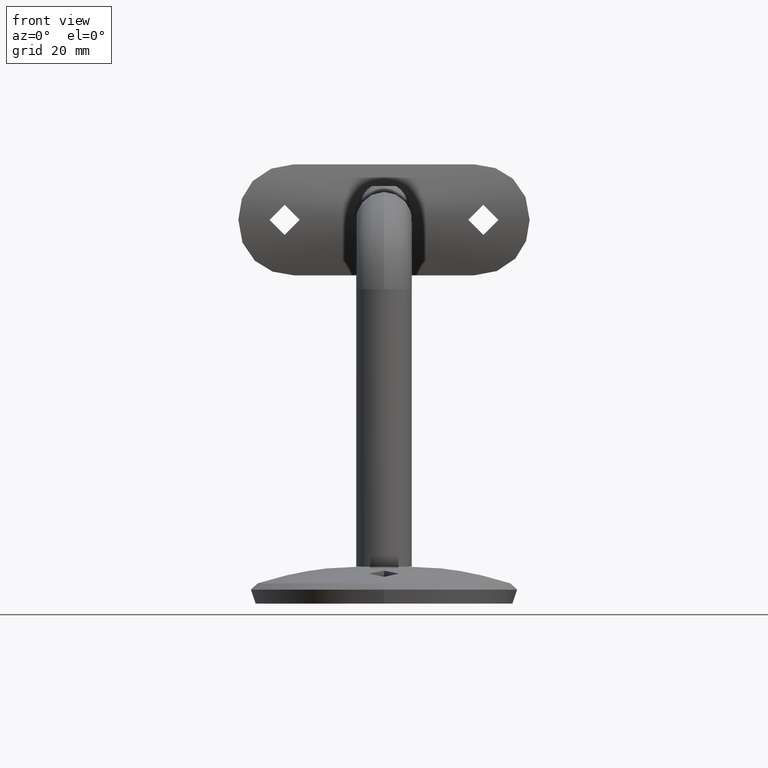
[diagram: clean part render]
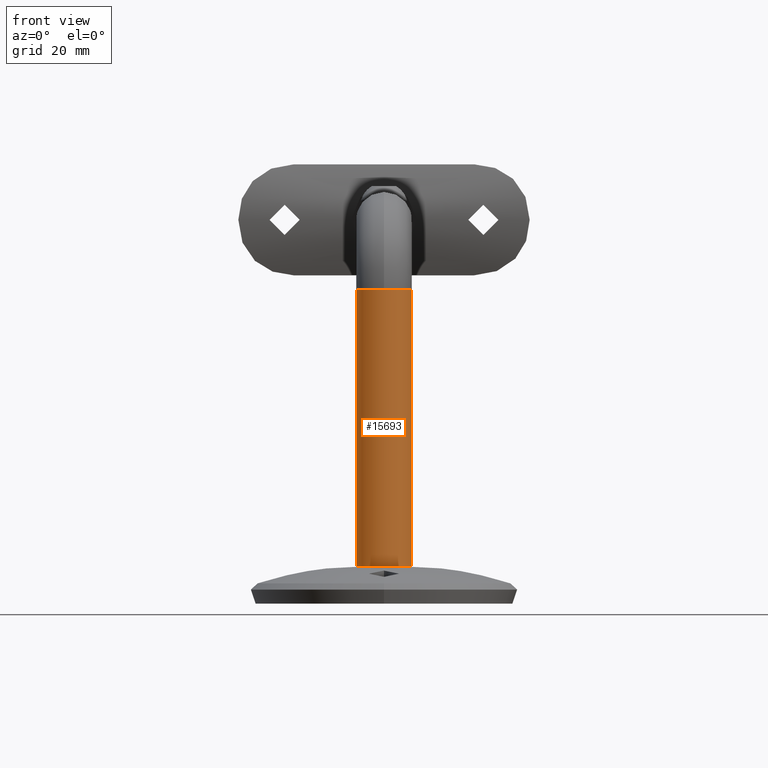
[diagram: same view with one face highlighted and labeled with its STEP entity id]
A machine part, front view. The second image highlights one B-rep face of the part: STEP entity #15693.
In plain terms, the highlighted cylindrical surface (edge-blend (fillet) strip) has radius 6 mm, axis along (0, 0, -1).
Its self-contained STEP definition (entity closure, byte-faithful):
#399 = CARTESIAN_POINT ( 'NONE',  ( 0.000000000000000000, 0.000000000000000000, 0.000000000000000000 ) ) ;
#507 = ORIENTED_EDGE ( 'NONE', *, *, #2418, .T. ) ;
#715 = ORIENTED_EDGE ( 'NONE', *, *, #5719, .T. ) ;
#722 = VECTOR ( 'NONE', #12103, 1000.000000000000000 ) ;
#1881 = DIRECTION ( 'NONE',  ( 1.000000000000000000, 0.000000000000000000, 0.000000000000000000 ) ) ;
#1962 = CIRCLE ( 'NONE', #18206, 6.000000000000000888 ) ;
#2080 = EDGE_LOOP ( 'NONE', ( #10238, #715, #507, #6909, #12499 ) ) ;
#2418 = EDGE_CURVE ( 'NONE', #14566, #14734, #1962, .T. ) ;
#2518 = CARTESIAN_POINT ( 'NONE',  ( 0.000000000000000000, 0.000000000000000000, -59.99999999999949551 ) ) ;
#2561 = CARTESIAN_POINT ( 'NONE',  ( 0.000000000000000000, 0.000000000000000000, -59.99999999999949551 ) ) ;
#2629 = CARTESIAN_POINT ( 'NONE',  ( 6.000000000000000888, 0.000000000000000000, 0.000000000000000000 ) ) ;
#2726 = DIRECTION ( 'NONE',  ( 0.000000000000000000, 0.000000000000000000, 1.000000000000000000 ) ) ;
#3420 = AXIS2_PLACEMENT_3D ( 'NONE', #2561, #6845, #18579 ) ;
#3424 = CARTESIAN_POINT ( 'NONE',  ( 6.000000000000000888, 0.000000000000000000, -59.99999999999949551 ) ) ;
#3556 = VERTEX_POINT ( 'NONE', #2629 ) ;
#3570 = CARTESIAN_POINT ( 'NONE',  ( 0.000000000000000000, 0.000000000000000000, -59.99999999999949551 ) ) ;
#3662 = FACE_OUTER_BOUND ( 'NONE', #2080, .T. ) ;
#3763 = DIRECTION ( 'NONE',  ( 0.000000000000000000, 0.000000000000000000, 1.000000000000000000 ) ) ;
#4418 = VERTEX_POINT ( 'NONE', #12779 ) ;
#5067 = CARTESIAN_POINT ( 'NONE',  ( -6.000000000000000888, 7.347880794884061558E-16, 0.000000000000000000 ) ) ;
#5100 = EDGE_CURVE ( 'NONE', #18043, #3556, #13372, .T. ) ;
#5103 = LINE ( 'NONE', #13582, #722 ) ;
#5719 = EDGE_CURVE ( 'NONE', #4418, #14566, #8077, .T. ) ;
#5785 = LINE ( 'NONE', #14599, #6236 ) ;
#6211 = EDGE_CURVE ( 'NONE', #14734, #3556, #5785, .T. ) ;
#6236 = VECTOR ( 'NONE', #2726, 1000.000000000000000 ) ;
#6468 = DIRECTION ( 'NONE',  ( 0.000000000000000000, 0.000000000000000000, 1.000000000000000000 ) ) ;
#6845 = DIRECTION ( 'NONE',  ( 0.000000000000000000, 0.000000000000000000, 1.000000000000000000 ) ) ;
#6909 = ORIENTED_EDGE ( 'NONE', *, *, #6211, .T. ) ;
#8077 = CIRCLE ( 'NONE', #9239, 6.000000000000000888 ) ;
#9181 = CYLINDRICAL_SURFACE ( 'NONE', #3420, 6.000000000000000888 ) ;
#9239 = AXIS2_PLACEMENT_3D ( 'NONE', #2518, #3763, #18536 ) ;
#10238 = ORIENTED_EDGE ( 'NONE', *, *, #13164, .F. ) ;
#10635 = DIRECTION ( 'NONE',  ( 0.000000000000000000, 0.000000000000000000, 1.000000000000000000 ) ) ;
#12103 = DIRECTION ( 'NONE',  ( 0.000000000000000000, 0.000000000000000000, 1.000000000000000000 ) ) ;
#12499 = ORIENTED_EDGE ( 'NONE', *, *, #5100, .F. ) ;
#12779 = CARTESIAN_POINT ( 'NONE',  ( -6.000000000000000888, 7.347880794884061558E-16, -59.99999999999949551 ) ) ;
#13164 = EDGE_CURVE ( 'NONE', #4418, #18043, #5103, .T. ) ;
#13372 = CIRCLE ( 'NONE', #17145, 6.000000000000000888 ) ;
#13582 = CARTESIAN_POINT ( 'NONE',  ( -6.000000000000000888, 7.347880794884061558E-16, -59.99999999999949551 ) ) ;
#14566 = VERTEX_POINT ( 'NONE', #16282 ) ;
#14599 = CARTESIAN_POINT ( 'NONE',  ( 6.000000000000000888, 0.000000000000000000, -59.99999999999949551 ) ) ;
#14734 = VERTEX_POINT ( 'NONE', #3424 ) ;
#15693 = ADVANCED_FACE ( 'NONE', ( #3662 ), #9181, .T. ) ;
#16282 = CARTESIAN_POINT ( 'NONE',  ( 0.000000000000000000, -5.999999999999977796, -59.99999999999949551 ) ) ;
#16672 = DIRECTION ( 'NONE',  ( 1.000000000000000000, 0.000000000000000000, 0.000000000000000000 ) ) ;
#17145 = AXIS2_PLACEMENT_3D ( 'NONE', #399, #10635, #1881 ) ;
#18043 = VERTEX_POINT ( 'NONE', #5067 ) ;
#18206 = AXIS2_PLACEMENT_3D ( 'NONE', #3570, #6468, #16672 ) ;
#18536 = DIRECTION ( 'NONE',  ( 1.000000000000000000, 0.000000000000000000, 0.000000000000000000 ) ) ;
#18579 = DIRECTION ( 'NONE',  ( 1.000000000000000000, 0.000000000000000000, 0.000000000000000000 ) ) ;